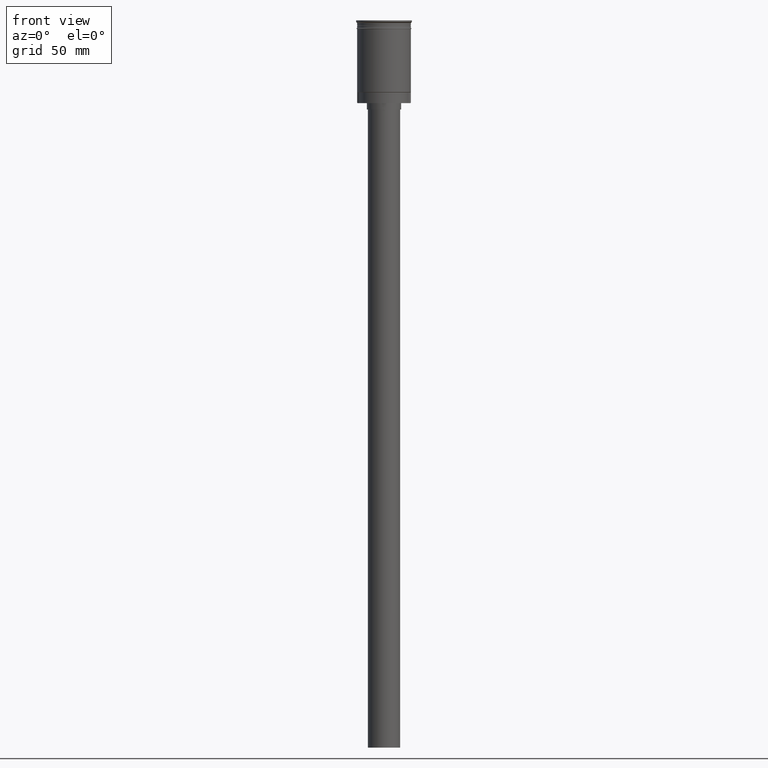
[diagram: clean part render]
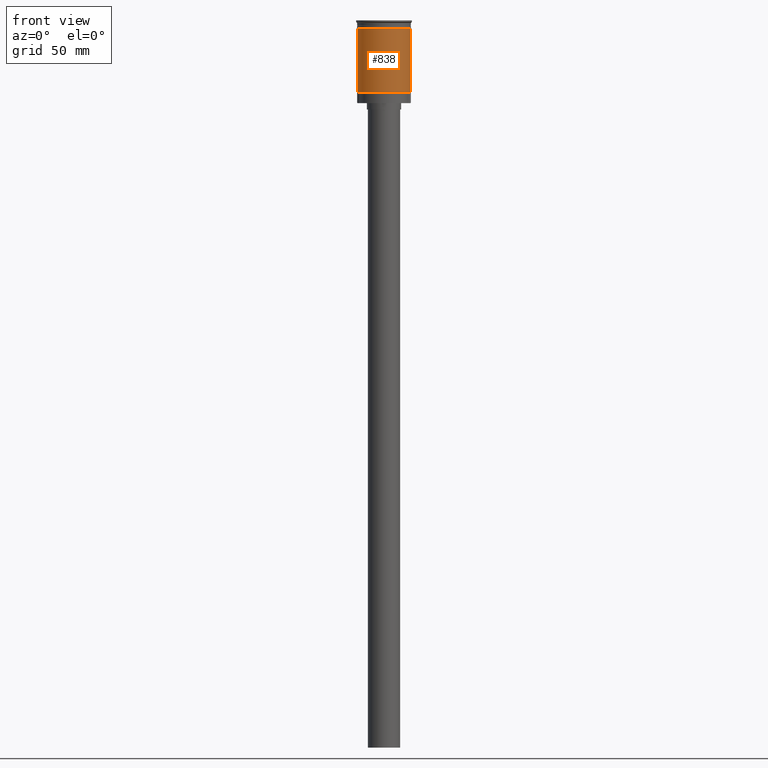
[diagram: same view with one face highlighted and labeled with its STEP entity id]
A machine part, front view. The second image highlights one B-rep face of the part: STEP entity #838.
In plain terms, the highlighted cylindrical surface (edge-blend (fillet) strip) has radius 12.5 mm, axis along (-0, -0, 1).
Its self-contained STEP definition (entity closure, byte-faithful):
#10 = VERTEX_POINT ( 'NONE', #1022 ) ;
#98 = CARTESIAN_POINT ( 'NONE',  ( -12.49999999999999289, 0.000000000000000000, -33.29999999999996874 ) ) ;
#183 = LINE ( 'NONE', #1394, #655 ) ;
#213 = EDGE_CURVE ( 'NONE', #618, #1498, #1232, .T. ) ;
#375 = CIRCLE ( 'NONE', #529, 12.49999999999999645 ) ;
#397 = CARTESIAN_POINT ( 'NONE',  ( 12.49999999999999645, 0.000000000000000000, 0.000000000000000000 ) ) ;
#406 = DIRECTION ( 'NONE',  ( 1.000000000000000000, 0.000000000000000000, 0.000000000000000000 ) ) ;
#529 = AXIS2_PLACEMENT_3D ( 'NONE', #1570, #989, #1579 ) ;
#545 = DIRECTION ( 'NONE',  ( -0.000000000000000000, -0.000000000000000000, 1.000000000000000000 ) ) ;
#590 = CARTESIAN_POINT ( 'NONE',  ( 0.000000000000000000, 0.000000000000000000, 0.000000000000000000 ) ) ;
#618 = VERTEX_POINT ( 'NONE', #910 ) ;
#655 = VECTOR ( 'NONE', #1055, 1000.000000000000000 ) ;
#676 = ORIENTED_EDGE ( 'NONE', *, *, #815, .T. ) ;
#714 = EDGE_CURVE ( 'NONE', #1572, #10, #183, .T. ) ;
#727 = DIRECTION ( 'NONE',  ( 1.000000000000000000, 0.000000000000000000, 0.000000000000000000 ) ) ;
#734 = FACE_OUTER_BOUND ( 'NONE', #743, .T. ) ;
#738 = CYLINDRICAL_SURFACE ( 'NONE', #1469, 12.49999999999999645 ) ;
#743 = EDGE_LOOP ( 'NONE', ( #804, #676, #1477, #1167 ) ) ;
#777 = AXIS2_PLACEMENT_3D ( 'NONE', #998, #1504, #406 ) ;
#804 = ORIENTED_EDGE ( 'NONE', *, *, #714, .F. ) ;
#815 = EDGE_CURVE ( 'NONE', #1572, #618, #375, .T. ) ;
#823 = CARTESIAN_POINT ( 'NONE',  ( 12.49999999999999822, 0.000000000000000000, -3.999999999999996447 ) ) ;
#838 = ADVANCED_FACE ( 'NONE', ( #734 ), #738, .T. ) ;
#863 = CIRCLE ( 'NONE', #777, 12.49999999999999822 ) ;
#910 = CARTESIAN_POINT ( 'NONE',  ( 12.49999999999999645, 1.530808498934191127E-15, -33.29999999999996874 ) ) ;
#960 = DIRECTION ( 'NONE',  ( -0.000000000000000000, -0.000000000000000000, 1.000000000000000000 ) ) ;
#989 = DIRECTION ( 'NONE',  ( -0.000000000000000000, -0.000000000000000000, 1.000000000000000000 ) ) ;
#998 = CARTESIAN_POINT ( 'NONE',  ( 0.000000000000000000, 0.000000000000000000, -3.999999999999996447 ) ) ;
#1022 = CARTESIAN_POINT ( 'NONE',  ( -12.50000000000000000, 1.530808498934191521E-15, -3.999999999999996447 ) ) ;
#1055 = DIRECTION ( 'NONE',  ( -0.000000000000000000, -0.000000000000000000, 1.000000000000000000 ) ) ;
#1083 = EDGE_CURVE ( 'NONE', #10, #1498, #863, .T. ) ;
#1167 = ORIENTED_EDGE ( 'NONE', *, *, #1083, .F. ) ;
#1232 = LINE ( 'NONE', #397, #1596 ) ;
#1394 = CARTESIAN_POINT ( 'NONE',  ( -12.49999999999999645, 1.530808498934191127E-15, 0.000000000000000000 ) ) ;
#1469 = AXIS2_PLACEMENT_3D ( 'NONE', #590, #960, #727 ) ;
#1477 = ORIENTED_EDGE ( 'NONE', *, *, #213, .T. ) ;
#1498 = VERTEX_POINT ( 'NONE', #823 ) ;
#1504 = DIRECTION ( 'NONE',  ( -0.000000000000000000, -0.000000000000000000, 1.000000000000000000 ) ) ;
#1570 = CARTESIAN_POINT ( 'NONE',  ( 0.000000000000000000, 0.000000000000000000, -33.29999999999996874 ) ) ;
#1572 = VERTEX_POINT ( 'NONE', #98 ) ;
#1579 = DIRECTION ( 'NONE',  ( -1.000000000000000000, 0.000000000000000000, 0.000000000000000000 ) ) ;
#1596 = VECTOR ( 'NONE', #545, 1000.000000000000000 ) ;